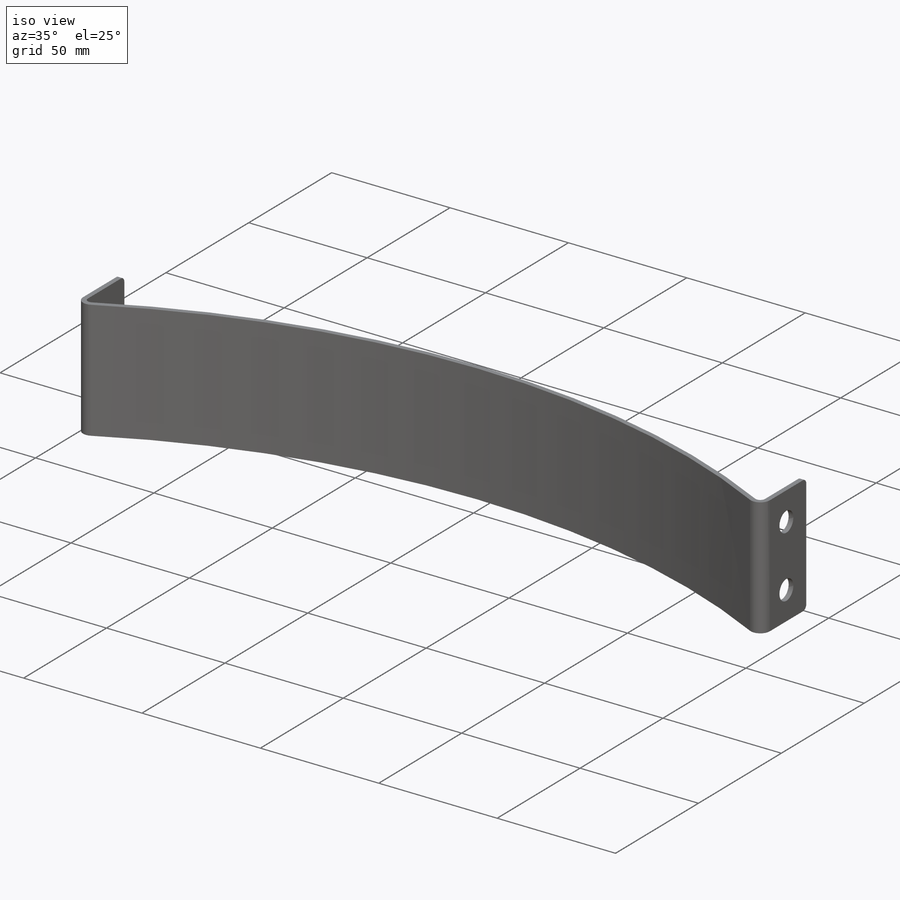
[diagram: iso view]
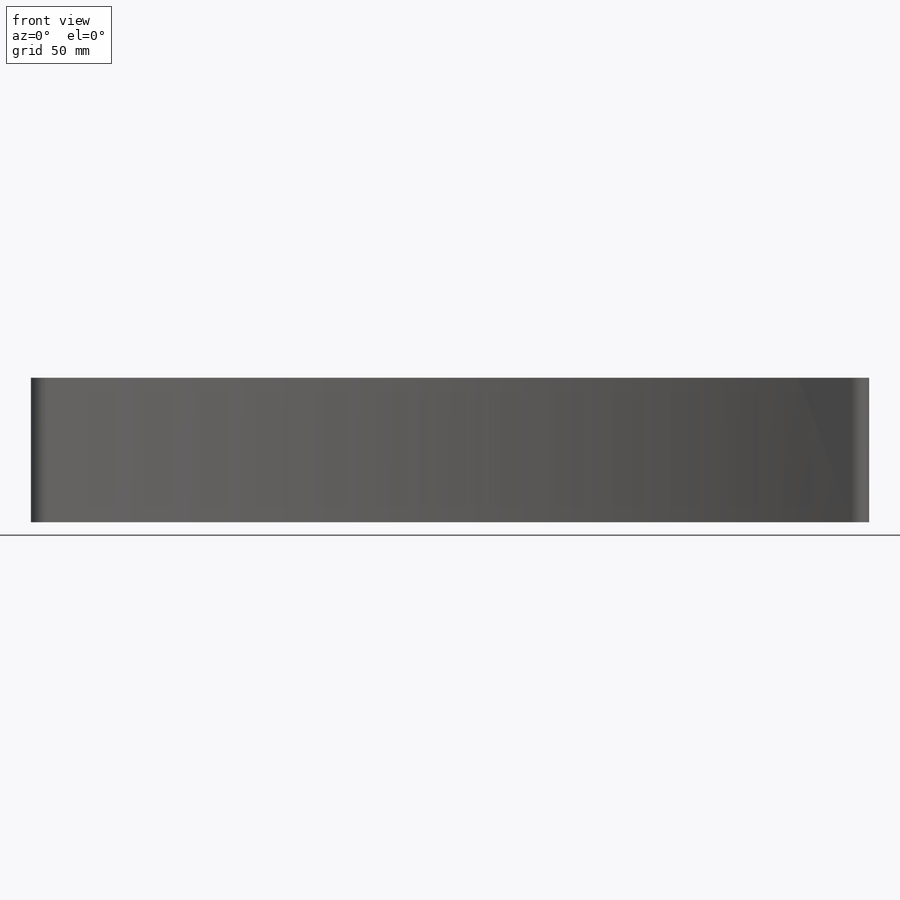
[diagram: front view]
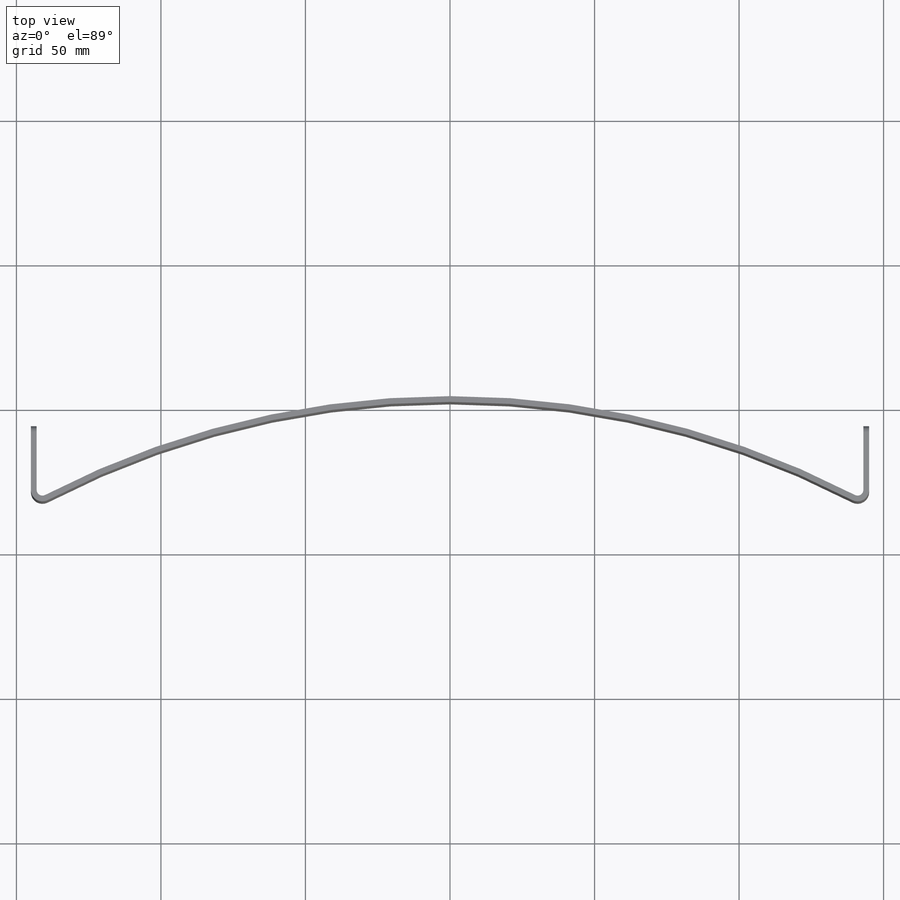
[diagram: top view]
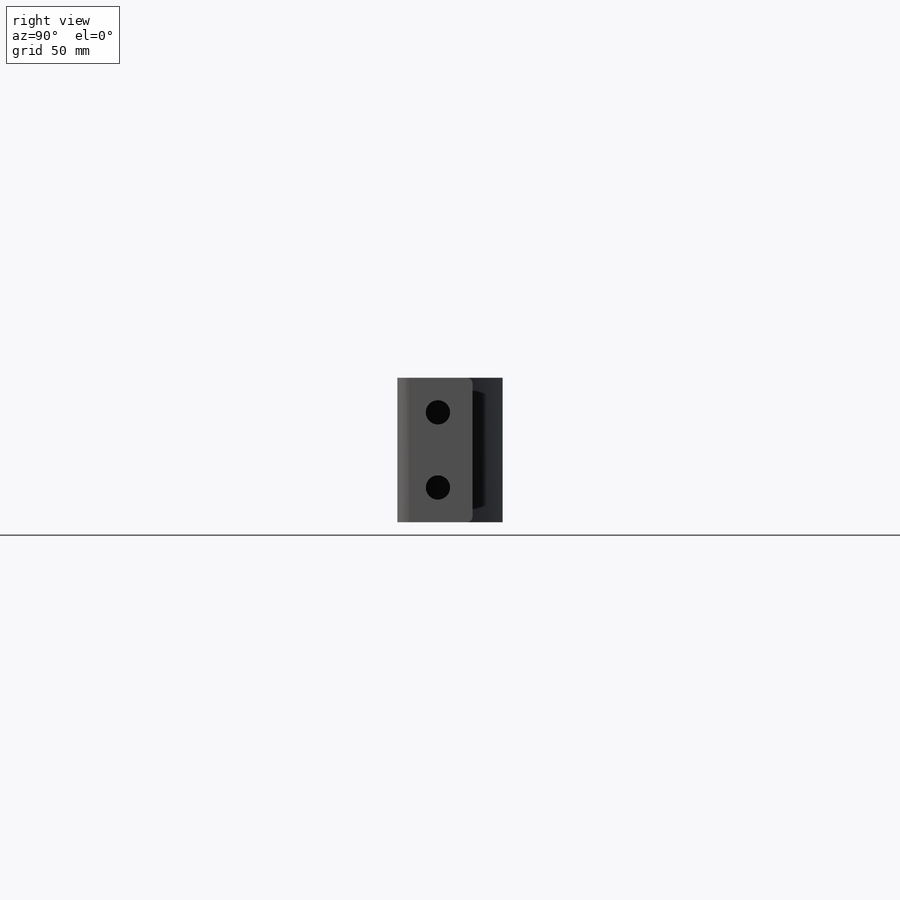
[diagram: right view]
SOLIDWORKS PART (.sldprt)
format: sldprt  version: not decoded by parser v0  size: 373,760 bytes
history: native  units: mm
features: sketch x9, sheet_metal_op x5, plane x3, hole x2, material x1, fillet x1 + 6 further entries (+10 scaffold rows collapsed; 4 parser-record rows omitted)
feature tree (41):
  scaffold x10  (default folders/planes/origin — collapsed)
  material  "1.0037 (S235JR)"
  plane  "Ebene vorne"
  plane  "Ebene oben"
  plane  "Ebene rechts"
  sketch  "Skizze1"  dims[c1.D1=604.0mm c1.D2=8.39mm c1.D3=24.0mm c1.D4=~271.77866mm c2.D3=290.0mm c2.D1=10.0mm c2.D2=0.5 c3.D3=0.0mm c3.D6=500.0mm]
  sheet_metal_op  "Basis-Blech2"
  sheet_metal_op  "Basisbiegung5"
  sheet_metal_op  "Basisbiegung6"
  parser-record x4  (decoder bookkeeping rows leaked as tree rows — omitted from the tree; the rows remain in map.json)
  hole  "Ø8.4 (8.4) Durchmesser Bohrung1"  Diameter=8.4mm Depth=2mm
  sketch  "Skizze5"  dims[D1=12.0mm D2=26.0mm D3=12.0mm D4=12.0mm D5=26.0mm D6=12.0mm]
  sketch  "Skizze6"  dims[hole-wizard template sketch: 59 standard entries collapsed; hole parameters kept: c18.Bohrerdurchmesser=8.4mm c18.Bohrungstiefe=2.0mm]
  fillet  "Verrundung1"  Radius=2mm
  sketch  "Biegung-Linien3"
  sketch  "Rahmen3"
  sheet_metal_op  "Blech2"
  "Abwicklung2"
  sketch  "Biegung-Linien4"
  sketch  "Rahmen4"
  "Abwickeln-<Basisbiegung5>1"
  "Abwickeln-<Basisbiegung6>1"
  hole  "Blech7"  Diameter=2mm
  sheet_metal_op  "Abwicklung2"
  sketch  "Biegung-Linien4"
  sketch  "Rahmen4"
  "Abwickeln-<Basisbiegung4>1"
  "Abwickeln-<Basisbiegung5>1"
  "Abwickeln-<Basisbiegung6>1"
decode coverage: 6 of 17 modeling features carry decoded parameters; 6 rows unclassified (native names shown)
note: ~ marks probable driven/reference dimensions
note: suppression state not decoded; provenance and decode notes live in map.json
